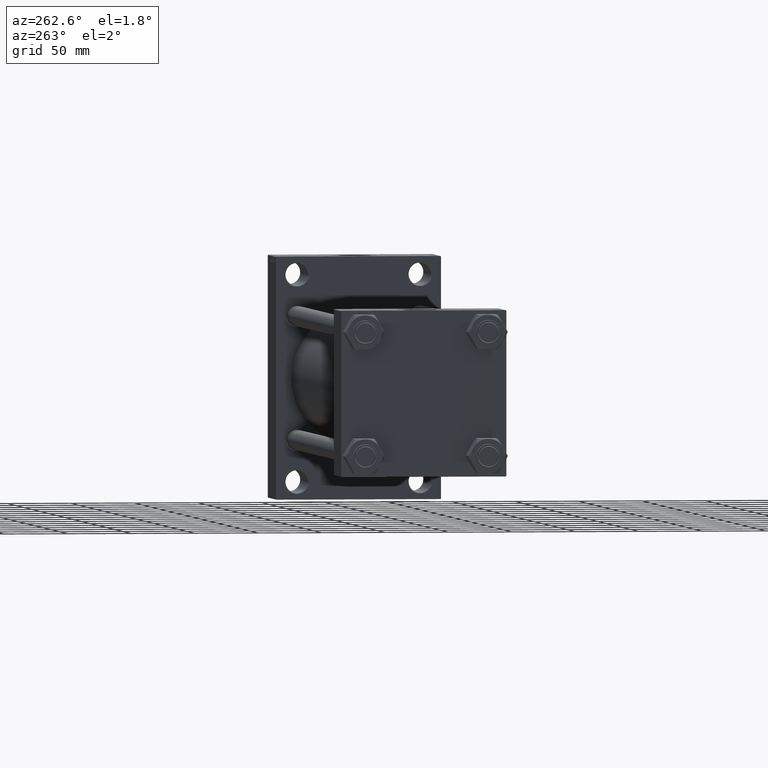
[diagram: clean part render]
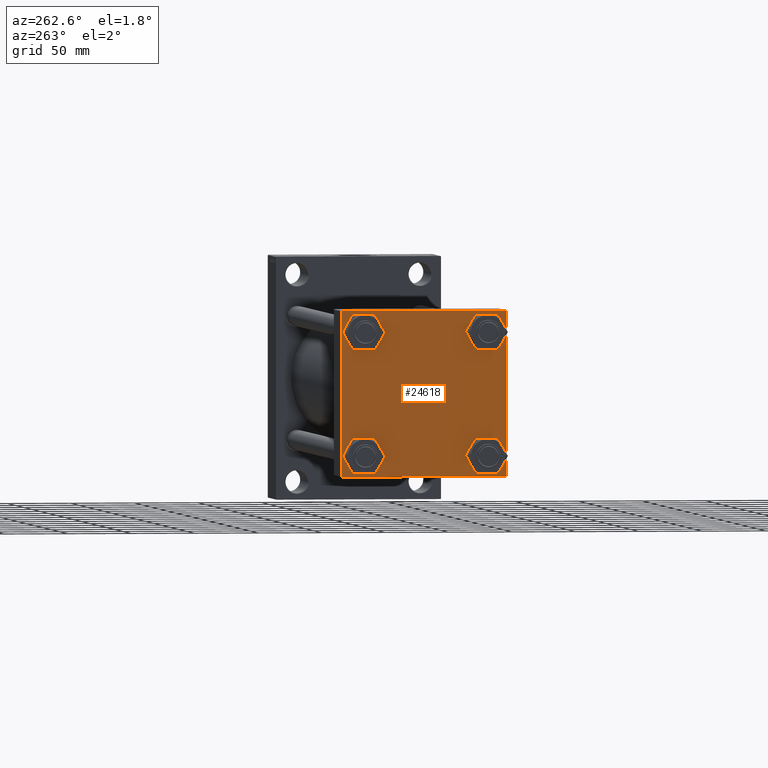
[diagram: same view with one face highlighted and labeled with its STEP entity id]
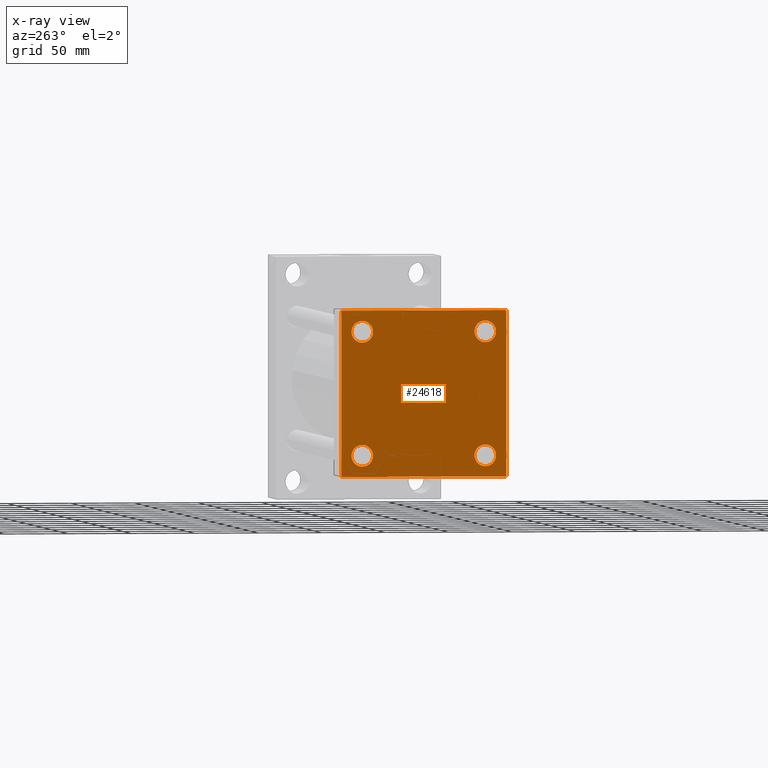
[diagram: x-ray of the same camera — body ghosted, the highlighted face saturated]
A machine part, auxiliary view. The second image highlights one B-rep face of the part: STEP entity #24618.
The next image is the same camera in x-ray: the body ghosted, the highlighted face saturated — about 0% of this face is hidden behind the body in this view.
In plain terms, the highlighted planar face has unit normal (-1, 0, 0).
Its self-contained STEP definition (entity closure, byte-faithful):
#215 = DIRECTION ( 'NONE',  ( -0.000000000000000000, 0.000000000000000000, 1.000000000000000000 ) ) ;
#576 = VERTEX_POINT ( 'NONE', #32106 ) ;
#952 = ORIENTED_EDGE ( 'NONE', *, *, #34350, .T. ) ;
#1026 = CARTESIAN_POINT ( 'NONE',  ( 0.000000000000000000, -48.44999999999999574, -48.45000000000003126 ) ) ;
#1143 = CARTESIAN_POINT ( 'NONE',  ( 0.000000000000000000, -48.44999999999999574, -56.95000000000003837 ) ) ;
#2168 = EDGE_CURVE ( 'NONE', #4148, #46170, #21237, .T. ) ;
#2200 = AXIS2_PLACEMENT_3D ( 'NONE', #4751, #5471, #42022 ) ;
#2264 = VECTOR ( 'NONE', #24447, 1000.000000000000000 ) ;
#2434 = LINE ( 'NONE', #17181, #43307 ) ;
#2619 = ORIENTED_EDGE ( 'NONE', *, *, #26968, .T. ) ;
#2758 = AXIS2_PLACEMENT_3D ( 'NONE', #8786, #27404, #45595 ) ;
#3002 = CARTESIAN_POINT ( 'NONE',  ( 0.000000000000000000, -65.00000000000000000, 64.50000000000000000 ) ) ;
#3003 = LINE ( 'NONE', #21363, #38068 ) ;
#3281 = CARTESIAN_POINT ( 'NONE',  ( 0.000000000000000000, -48.44999999999999574, 48.45000000000003126 ) ) ;
#3392 = EDGE_CURVE ( 'NONE', #25828, #43160, #47639, .T. ) ;
#4148 = VERTEX_POINT ( 'NONE', #36261 ) ;
#4169 = DIRECTION ( 'NONE',  ( 0.000000000000000000, -0.7071067811865279218, 0.7071067811865671127 ) ) ;
#4492 = VERTEX_POINT ( 'NONE', #16133 ) ;
#4751 = CARTESIAN_POINT ( 'NONE',  ( 0.000000000000000000, 48.45000000000000995, 48.45000000000001705 ) ) ;
#4854 = EDGE_CURVE ( 'NONE', #34031, #4492, #39495, .T. ) ;
#5471 = DIRECTION ( 'NONE',  ( 1.000000000000000000, -0.000000000000000000, 0.000000000000000000 ) ) ;
#6034 = DIRECTION ( 'NONE',  ( 0.000000000000000000, 0.000000000000000000, 1.000000000000000000 ) ) ;
#6414 = EDGE_CURVE ( 'NONE', #38175, #41938, #31095, .T. ) ;
#6698 = EDGE_CURVE ( 'NONE', #36838, #44307, #21281, .T. ) ;
#6751 = FACE_OUTER_BOUND ( 'NONE', #44412, .T. ) ;
#7574 = CIRCLE ( 'NONE', #2200, 8.500000000000007105 ) ;
#8331 = DIRECTION ( 'NONE',  ( 0.000000000000000000, 0.000000000000000000, 1.000000000000000000 ) ) ;
#8786 = CARTESIAN_POINT ( 'NONE',  ( 0.000000000000000000, 48.45000000000000995, 48.45000000000001705 ) ) ;
#9391 = CARTESIAN_POINT ( 'NONE',  ( 0.000000000000000000, -64.49999999999997158, 65.00000000000000000 ) ) ;
#9592 = CARTESIAN_POINT ( 'NONE',  ( 0.000000000000000000, 48.45000000000000995, 56.95000000000002416 ) ) ;
#10002 = ORIENTED_EDGE ( 'NONE', *, *, #41647, .F. ) ;
#10206 = CARTESIAN_POINT ( 'NONE',  ( 0.000000000000000000, 64.74999999999998579, 64.74999999999998579 ) ) ;
#10533 = DIRECTION ( 'NONE',  ( 1.000000000000000000, -0.000000000000000000, 0.000000000000000000 ) ) ;
#10858 = FACE_BOUND ( 'NONE', #16077, .T. ) ;
#11444 = DIRECTION ( 'NONE',  ( 0.000000000000000000, 0.000000000000000000, 1.000000000000000000 ) ) ;
#11779 = CIRCLE ( 'NONE', #13350, 8.500000000000007105 ) ;
#12122 = ORIENTED_EDGE ( 'NONE', *, *, #2168, .T. ) ;
#12246 = ORIENTED_EDGE ( 'NONE', *, *, #38306, .T. ) ;
#12335 = CARTESIAN_POINT ( 'NONE',  ( 0.000000000000000000, 48.45000000000000995, 39.95000000000000284 ) ) ;
#13181 = CARTESIAN_POINT ( 'NONE',  ( 0.000000000000000000, 64.49999999999997158, 65.00000000000001421 ) ) ;
#13334 = CARTESIAN_POINT ( 'NONE',  ( 0.000000000000000000, 64.74999999999997158, -64.74999999999997158 ) ) ;
#13350 = AXIS2_PLACEMENT_3D ( 'NONE', #44614, #34408, #11444 ) ;
#13517 = EDGE_CURVE ( 'NONE', #44307, #36838, #7574, .T. ) ;
#13742 = CARTESIAN_POINT ( 'NONE',  ( 0.000000000000000000, 65.00000000000000000, 65.00000000000001421 ) ) ;
#13953 = ORIENTED_EDGE ( 'NONE', *, *, #3392, .T. ) ;
#14493 = FACE_BOUND ( 'NONE', #23489, .T. ) ;
#14734 = CARTESIAN_POINT ( 'NONE',  ( 0.000000000000000000, 0.000000000000000000, 0.000000000000000000 ) ) ;
#14882 = DIRECTION ( 'NONE',  ( 0.000000000000000000, 0.000000000000000000, 1.000000000000000000 ) ) ;
#15288 = LINE ( 'NONE', #29582, #44043 ) ;
#15405 = ORIENTED_EDGE ( 'NONE', *, *, #19931, .T. ) ;
#15814 = ORIENTED_EDGE ( 'NONE', *, *, #6414, .F. ) ;
#15997 = DIRECTION ( 'NONE',  ( 1.000000000000000000, -0.000000000000000000, 0.000000000000000000 ) ) ;
#16056 = EDGE_CURVE ( 'NONE', #46170, #4148, #35389, .T. ) ;
#16077 = EDGE_LOOP ( 'NONE', ( #2619, #12246 ) ) ;
#16133 = CARTESIAN_POINT ( 'NONE',  ( 0.000000000000000000, 65.00000000000000000, 64.49999999999998579 ) ) ;
#17181 = CARTESIAN_POINT ( 'NONE',  ( 0.000000000000000000, 65.00000000000000000, 65.00000000000001421 ) ) ;
#17850 = CARTESIAN_POINT ( 'NONE',  ( 0.000000000000000000, -48.44999999999999574, -39.95000000000001705 ) ) ;
#17901 = AXIS2_PLACEMENT_3D ( 'NONE', #14734, #44034, #215 ) ;
#19119 = EDGE_CURVE ( 'NONE', #576, #24688, #31958, .T. ) ;
#19185 = AXIS2_PLACEMENT_3D ( 'NONE', #1026, #29824, #29593 ) ;
#19657 = EDGE_CURVE ( 'NONE', #35712, #41938, #15288, .T. ) ;
#19931 = EDGE_CURVE ( 'NONE', #24688, #35712, #31968, .T. ) ;
#19933 = ORIENTED_EDGE ( 'NONE', *, *, #19657, .T. ) ;
#20869 = VERTEX_POINT ( 'NONE', #9391 ) ;
#21237 = CIRCLE ( 'NONE', #27418, 8.500000000000007105 ) ;
#21281 = CIRCLE ( 'NONE', #2758, 8.500000000000007105 ) ;
#21363 = CARTESIAN_POINT ( 'NONE',  ( -0.000000000000000000, -64.74999999999819522, 64.75000000000179057 ) ) ;
#21547 = CIRCLE ( 'NONE', #31609, 8.500000000000007105 ) ;
#22127 = ORIENTED_EDGE ( 'NONE', *, *, #19119, .T. ) ;
#22335 = VECTOR ( 'NONE', #39220, 1000.000000000000114 ) ;
#23327 = CARTESIAN_POINT ( 'NONE',  ( 0.000000000000000000, 48.45000000000000995, -48.45000000000001705 ) ) ;
#23489 = EDGE_LOOP ( 'NONE', ( #45552, #44145 ) ) ;
#24447 = DIRECTION ( 'NONE',  ( 0.000000000000000000, -1.000000000000000000, -1.067522139062650425E-16 ) ) ;
#24618 = ADVANCED_FACE ( 'NONE', ( #39913, #10858, #33356, #14493, #6751 ), #32410, .T. ) ;
#24688 = VERTEX_POINT ( 'NONE', #29723 ) ;
#25316 = AXIS2_PLACEMENT_3D ( 'NONE', #3281, #10533, #14882 ) ;
#25381 = DIRECTION ( 'NONE',  ( 0.000000000000000000, -1.000000000000000000, -1.067522139062650425E-16 ) ) ;
#25828 = VERTEX_POINT ( 'NONE', #43746 ) ;
#26883 = CARTESIAN_POINT ( 'NONE',  ( 0.000000000000000000, -48.44999999999999574, 48.45000000000003126 ) ) ;
#26908 = CARTESIAN_POINT ( 'NONE',  ( 0.000000000000000000, -48.44999999999999574, 39.95000000000001705 ) ) ;
#26968 = EDGE_CURVE ( 'NONE', #31895, #30897, #11779, .T. ) ;
#27043 = CARTESIAN_POINT ( 'NONE',  ( 0.000000000000000000, -65.00000000000000000, -64.49999999999991473 ) ) ;
#27404 = DIRECTION ( 'NONE',  ( 1.000000000000000000, -0.000000000000000000, 0.000000000000000000 ) ) ;
#27418 = AXIS2_PLACEMENT_3D ( 'NONE', #26883, #15997, #38518 ) ;
#27888 = VECTOR ( 'NONE', #45894, 1000.000000000000000 ) ;
#28498 = DIRECTION ( 'NONE',  ( 0.000000000000000000, 0.000000000000000000, -1.000000000000000000 ) ) ;
#29582 = CARTESIAN_POINT ( 'NONE',  ( 0.000000000000000000, -64.75000000000176215, -64.74999999999816680 ) ) ;
#29593 = DIRECTION ( 'NONE',  ( 0.000000000000000000, 0.000000000000000000, 1.000000000000000000 ) ) ;
#29723 = CARTESIAN_POINT ( 'NONE',  ( 0.000000000000000000, 64.49999999999997158, -64.99999999999998579 ) ) ;
#29824 = DIRECTION ( 'NONE',  ( 1.000000000000000000, -0.000000000000000000, 0.000000000000000000 ) ) ;
#30589 = EDGE_CURVE ( 'NONE', #38175, #20869, #3003, .T. ) ;
#30628 = VECTOR ( 'NONE', #43127, 1000.000000000000114 ) ;
#30897 = VERTEX_POINT ( 'NONE', #1143 ) ;
#31095 = LINE ( 'NONE', #45398, #27888 ) ;
#31609 = AXIS2_PLACEMENT_3D ( 'NONE', #44032, #40153, #6034 ) ;
#31895 = VERTEX_POINT ( 'NONE', #17850 ) ;
#31958 = LINE ( 'NONE', #13334, #22335 ) ;
#31968 = LINE ( 'NONE', #47244, #2264 ) ;
#32106 = CARTESIAN_POINT ( 'NONE',  ( 0.000000000000000000, 65.00000000000000000, -64.49999999999995737 ) ) ;
#32410 = PLANE ( 'NONE',  #17901 ) ;
#33356 = FACE_BOUND ( 'NONE', #41241, .T. ) ;
#33775 = ORIENTED_EDGE ( 'NONE', *, *, #30589, .T. ) ;
#34031 = VERTEX_POINT ( 'NONE', #13181 ) ;
#34350 = EDGE_CURVE ( 'NONE', #4492, #576, #34377, .T. ) ;
#34377 = LINE ( 'NONE', #13742, #43823 ) ;
#34408 = DIRECTION ( 'NONE',  ( 1.000000000000000000, -0.000000000000000000, 0.000000000000000000 ) ) ;
#35239 = AXIS2_PLACEMENT_3D ( 'NONE', #23327, #40788, #8331 ) ;
#35389 = CIRCLE ( 'NONE', #25316, 8.500000000000007105 ) ;
#35712 = VERTEX_POINT ( 'NONE', #35772 ) ;
#35772 = CARTESIAN_POINT ( 'NONE',  ( 0.000000000000000000, -64.49999999999994316, -65.00000000000000000 ) ) ;
#36201 = CIRCLE ( 'NONE', #19185, 8.500000000000007105 ) ;
#36261 = CARTESIAN_POINT ( 'NONE',  ( 0.000000000000000000, -48.44999999999999574, 56.95000000000003837 ) ) ;
#36838 = VERTEX_POINT ( 'NONE', #9592 ) ;
#36968 = EDGE_LOOP ( 'NONE', ( #12122, #38422 ) ) ;
#37130 = ORIENTED_EDGE ( 'NONE', *, *, #4854, .T. ) ;
#38068 = VECTOR ( 'NONE', #46829, 1000.000000000000000 ) ;
#38175 = VERTEX_POINT ( 'NONE', #3002 ) ;
#38306 = EDGE_CURVE ( 'NONE', #30897, #31895, #36201, .T. ) ;
#38422 = ORIENTED_EDGE ( 'NONE', *, *, #16056, .T. ) ;
#38518 = DIRECTION ( 'NONE',  ( 0.000000000000000000, 0.000000000000000000, 1.000000000000000000 ) ) ;
#39220 = DIRECTION ( 'NONE',  ( -0.000000000000000000, -0.7071067811865474617, -0.7071067811865474617 ) ) ;
#39495 = LINE ( 'NONE', #10206, #30628 ) ;
#39518 = EDGE_CURVE ( 'NONE', #43160, #25828, #21547, .T. ) ;
#39913 = FACE_BOUND ( 'NONE', #36968, .T. ) ;
#40153 = DIRECTION ( 'NONE',  ( 1.000000000000000000, -0.000000000000000000, 0.000000000000000000 ) ) ;
#40788 = DIRECTION ( 'NONE',  ( 1.000000000000000000, -0.000000000000000000, 0.000000000000000000 ) ) ;
#41241 = EDGE_LOOP ( 'NONE', ( #13953, #43424 ) ) ;
#41647 = EDGE_CURVE ( 'NONE', #34031, #20869, #2434, .T. ) ;
#41938 = VERTEX_POINT ( 'NONE', #27043 ) ;
#42022 = DIRECTION ( 'NONE',  ( 0.000000000000000000, 0.000000000000000000, 1.000000000000000000 ) ) ;
#43127 = DIRECTION ( 'NONE',  ( 0.000000000000000000, 0.7071067811865474617, -0.7071067811865474617 ) ) ;
#43160 = VERTEX_POINT ( 'NONE', #47255 ) ;
#43307 = VECTOR ( 'NONE', #25381, 1000.000000000000000 ) ;
#43424 = ORIENTED_EDGE ( 'NONE', *, *, #39518, .T. ) ;
#43746 = CARTESIAN_POINT ( 'NONE',  ( 0.000000000000000000, 48.45000000000000995, -39.95000000000000284 ) ) ;
#43823 = VECTOR ( 'NONE', #28498, 1000.000000000000000 ) ;
#44032 = CARTESIAN_POINT ( 'NONE',  ( 0.000000000000000000, 48.45000000000000995, -48.45000000000001705 ) ) ;
#44034 = DIRECTION ( 'NONE',  ( -1.000000000000000000, 0.000000000000000000, -0.000000000000000000 ) ) ;
#44043 = VECTOR ( 'NONE', #4169, 1000.000000000000000 ) ;
#44145 = ORIENTED_EDGE ( 'NONE', *, *, #13517, .T. ) ;
#44307 = VERTEX_POINT ( 'NONE', #12335 ) ;
#44412 = EDGE_LOOP ( 'NONE', ( #952, #22127, #15405, #19933, #15814, #33775, #10002, #37130 ) ) ;
#44614 = CARTESIAN_POINT ( 'NONE',  ( 0.000000000000000000, -48.44999999999999574, -48.45000000000003126 ) ) ;
#45398 = CARTESIAN_POINT ( 'NONE',  ( 0.000000000000000000, -65.00000000000000000, 65.00000000000000000 ) ) ;
#45552 = ORIENTED_EDGE ( 'NONE', *, *, #6698, .T. ) ;
#45595 = DIRECTION ( 'NONE',  ( 0.000000000000000000, 0.000000000000000000, 1.000000000000000000 ) ) ;
#45894 = DIRECTION ( 'NONE',  ( 0.000000000000000000, 0.000000000000000000, -1.000000000000000000 ) ) ;
#46170 = VERTEX_POINT ( 'NONE', #26908 ) ;
#46829 = DIRECTION ( 'NONE',  ( -0.000000000000000000, 0.7071067811865672237, 0.7071067811865279218 ) ) ;
#47244 = CARTESIAN_POINT ( 'NONE',  ( 0.000000000000000000, 65.00000000000000000, -64.99999999999998579 ) ) ;
#47255 = CARTESIAN_POINT ( 'NONE',  ( 0.000000000000000000, 48.45000000000000995, -56.95000000000002416 ) ) ;
#47639 = CIRCLE ( 'NONE', #35239, 8.500000000000007105 ) ;